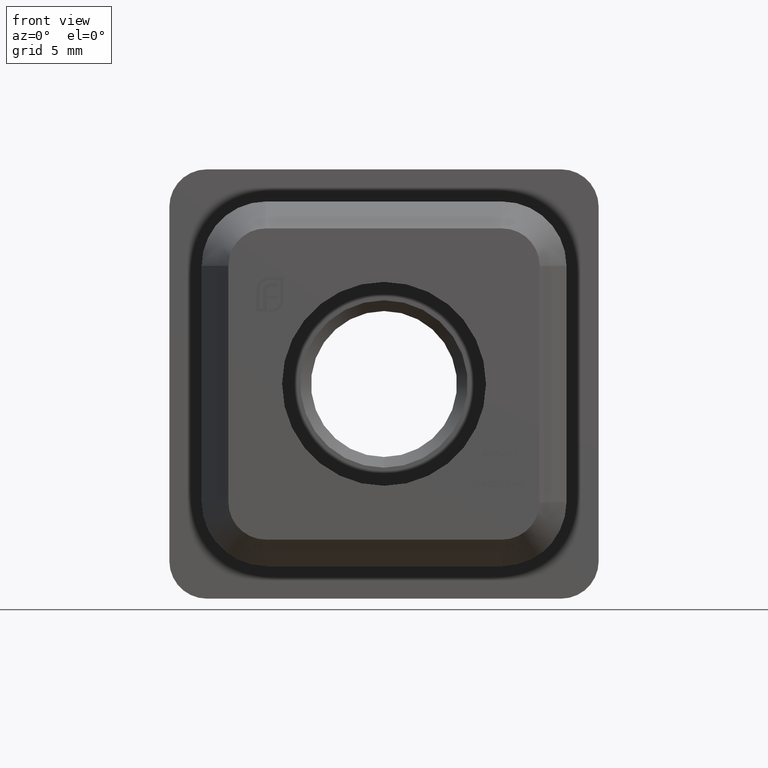
[diagram: clean part render]
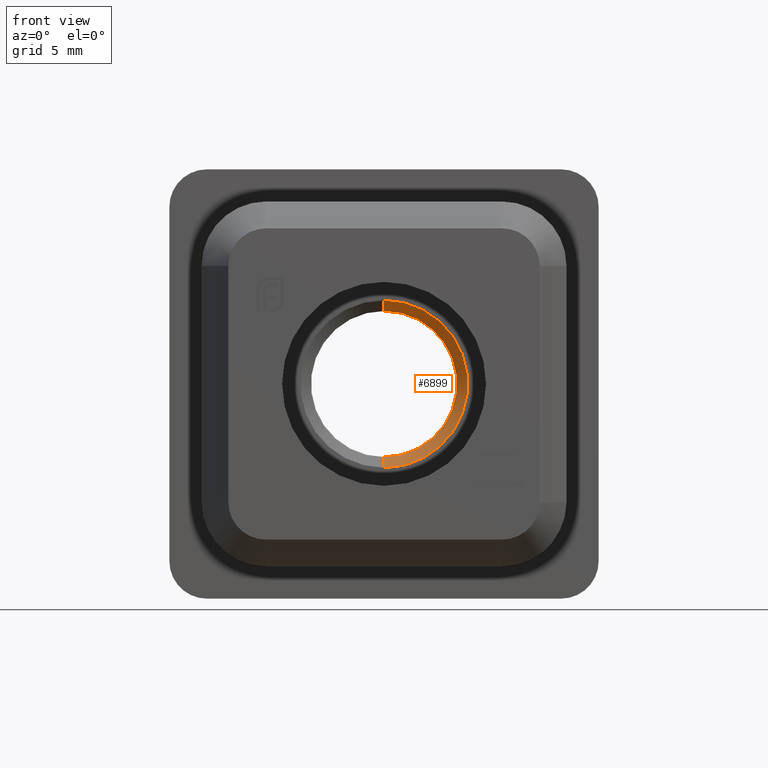
[diagram: same view with one face highlighted and labeled with its STEP entity id]
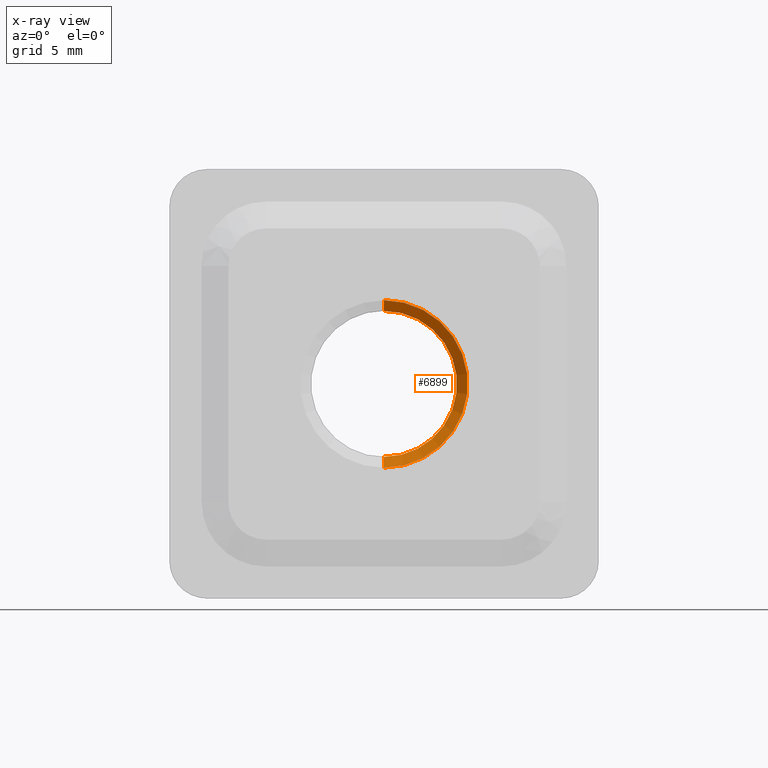
[diagram: x-ray of the same camera — body ghosted, the highlighted face saturated]
A machine part, front view. The second image highlights one B-rep face of the part: STEP entity #6899.
The next image is the same camera in x-ray: the body ghosted, the highlighted face saturated — about 0% of this face is hidden behind the body in this view.
In plain terms, the highlighted conical surface has half-angle 45 deg.
Its self-contained STEP definition (entity closure, byte-faithful):
#175 = AXIS2_PLACEMENT_3D ( 'NONE', #3049, #18899, #17163 ) ;
#639 = VECTOR ( 'NONE', #5856, 1000.000000000000114 ) ;
#720 = VERTEX_POINT ( 'NONE', #18114 ) ;
#1049 = VERTEX_POINT ( 'NONE', #14668 ) ;
#1418 = LINE ( 'NONE', #10082, #20162 ) ;
#1848 = CARTESIAN_POINT ( 'NONE',  ( 0.000000000000000000, 1.800000000000001155, 0.000000000000000000 ) ) ;
#2472 = DIRECTION ( 'NONE',  ( 0.000000000000000000, -0.7071067811865460184, -0.7071067811865490160 ) ) ;
#3049 = CARTESIAN_POINT ( 'NONE',  ( 0.000000000000000000, 1.299999999999999822, 0.000000000000000000 ) ) ;
#3447 = DIRECTION ( 'NONE',  ( 0.000000000000000000, 0.000000000000000000, -1.000000000000000000 ) ) ;
#3966 = EDGE_LOOP ( 'NONE', ( #11935, #12768, #9797, #14050 ) ) ;
#4164 = VERTEX_POINT ( 'NONE', #5468 ) ;
#4761 = DIRECTION ( 'NONE',  ( 0.000000000000000000, -1.000000000000000000, 0.000000000000000000 ) ) ;
#4805 = CIRCLE ( 'NONE', #9046, 3.399999999999995470 ) ;
#5468 = CARTESIAN_POINT ( 'NONE',  ( 4.163799117100995629E-16, 1.800000000000001155, -3.399999999999995470 ) ) ;
#5856 = DIRECTION ( 'NONE',  ( 8.659560562354952580E-17, -0.7071067811865460184, 0.7071067811865490160 ) ) ;
#6281 = FACE_OUTER_BOUND ( 'NONE', #3966, .T. ) ;
#6899 = ADVANCED_FACE ( 'NONE', ( #6281 ), #8232, .F. ) ;
#7121 = EDGE_CURVE ( 'NONE', #4164, #1049, #1418, .T. ) ;
#7404 = VERTEX_POINT ( 'NONE', #14780 ) ;
#7607 = EDGE_CURVE ( 'NONE', #7404, #1049, #16716, .T. ) ;
#8232 = CONICAL_SURFACE ( 'NONE', #10163, 3.399999999999995470, 0.7853981633974504994 ) ;
#9046 = AXIS2_PLACEMENT_3D ( 'NONE', #9108, #9170, #20135 ) ;
#9108 = CARTESIAN_POINT ( 'NONE',  ( 0.000000000000000000, 1.800000000000001155, 0.000000000000000000 ) ) ;
#9170 = DIRECTION ( 'NONE',  ( 0.000000000000000000, -1.000000000000000000, 0.000000000000000000 ) ) ;
#9797 = ORIENTED_EDGE ( 'NONE', *, *, #7121, .T. ) ;
#10082 = CARTESIAN_POINT ( 'NONE',  ( 0.000000000000000000, 1.800000000000001155, -3.399999999999995470 ) ) ;
#10163 = AXIS2_PLACEMENT_3D ( 'NONE', #1848, #4761, #3447 ) ;
#10705 = EDGE_CURVE ( 'NONE', #4164, #720, #4805, .T. ) ;
#11603 = EDGE_CURVE ( 'NONE', #720, #7404, #19103, .T. ) ;
#11935 = ORIENTED_EDGE ( 'NONE', *, *, #11603, .F. ) ;
#12768 = ORIENTED_EDGE ( 'NONE', *, *, #10705, .F. ) ;
#13681 = CARTESIAN_POINT ( 'NONE',  ( 4.163799117100995629E-16, 1.800000000000001155, 3.399999999999995470 ) ) ;
#14050 = ORIENTED_EDGE ( 'NONE', *, *, #7607, .F. ) ;
#14668 = CARTESIAN_POINT ( 'NONE',  ( 0.000000000000000000, 1.299999999999999822, -3.899999999999999023 ) ) ;
#14780 = CARTESIAN_POINT ( 'NONE',  ( 4.776122516674677286E-16, 1.299999999999999822, 3.899999999999999023 ) ) ;
#16716 = CIRCLE ( 'NONE', #175, 3.899999999999999467 ) ;
#17163 = DIRECTION ( 'NONE',  ( 0.000000000000000000, 0.000000000000000000, -1.000000000000000000 ) ) ;
#18114 = CARTESIAN_POINT ( 'NONE',  ( 0.000000000000000000, 1.800000000000001155, 3.399999999999995470 ) ) ;
#18899 = DIRECTION ( 'NONE',  ( -0.000000000000000000, 1.000000000000000000, -0.000000000000000000 ) ) ;
#19103 = LINE ( 'NONE', #13681, #639 ) ;
#20135 = DIRECTION ( 'NONE',  ( 0.000000000000000000, 0.000000000000000000, -1.000000000000000000 ) ) ;
#20162 = VECTOR ( 'NONE', #2472, 1000.000000000000114 ) ;